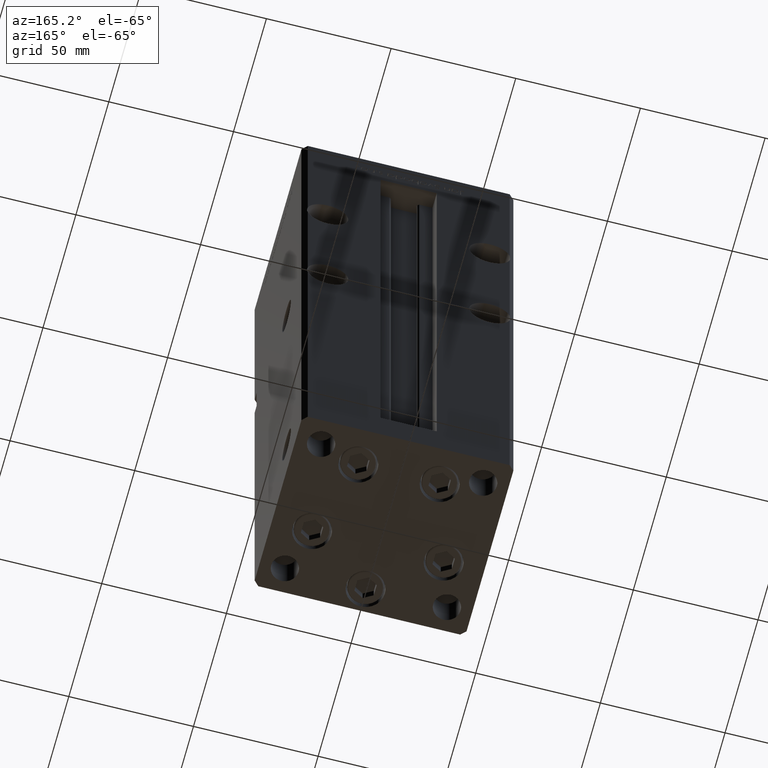
[diagram: clean part render]
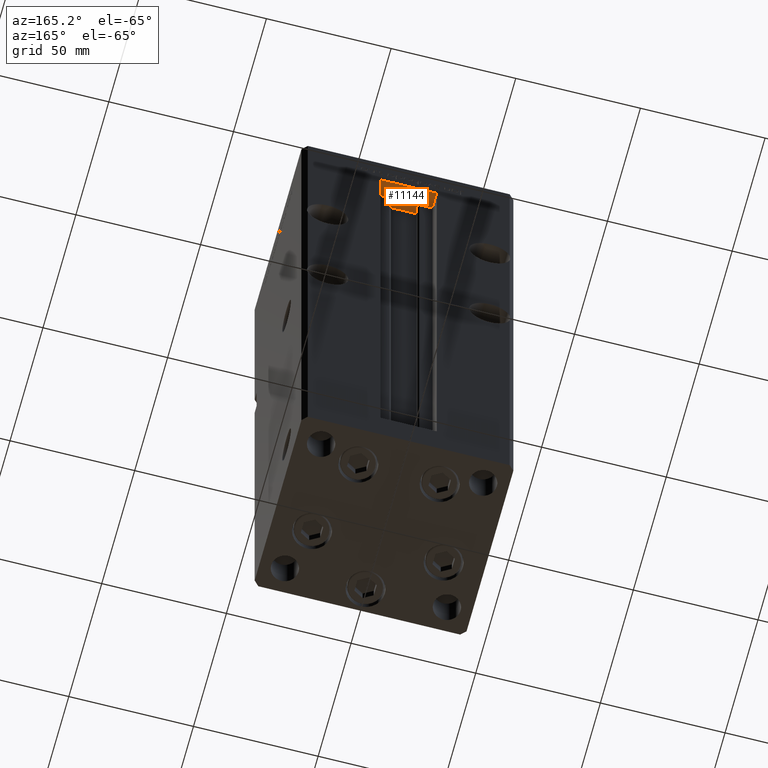
[diagram: same view with one face highlighted and labeled with its STEP entity id]
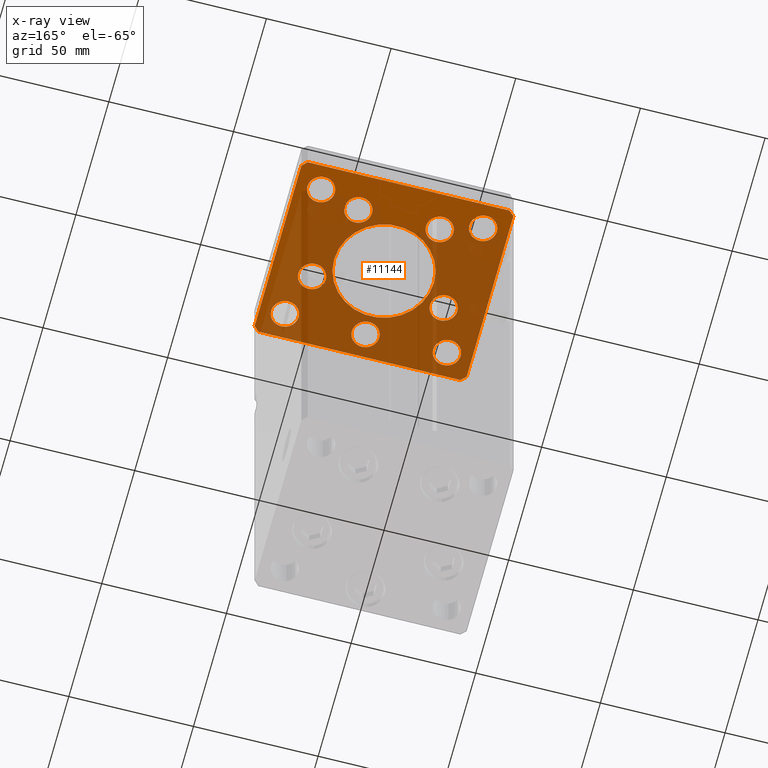
[diagram: x-ray of the same camera — body ghosted, the highlighted face saturated]
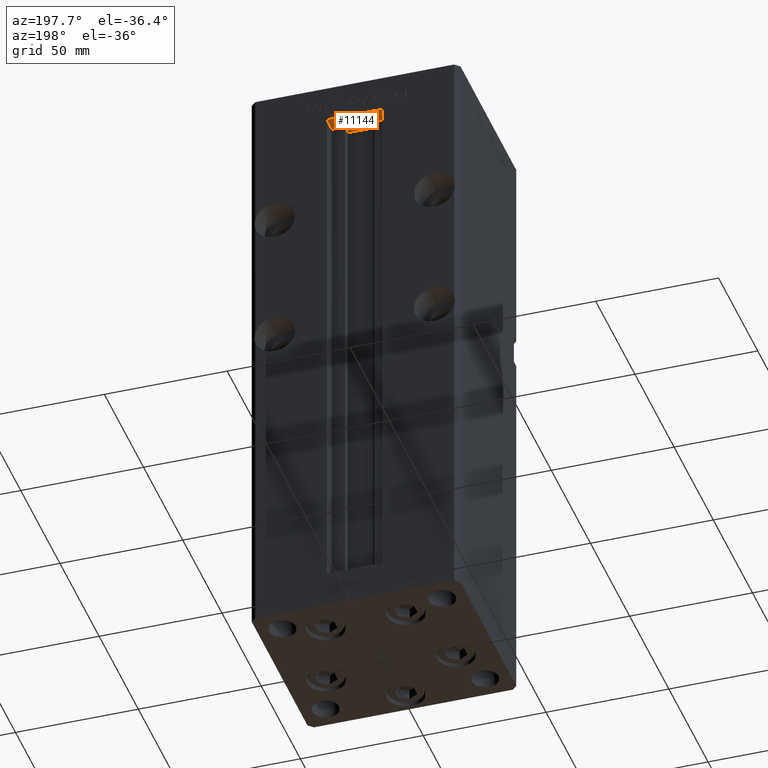
[diagram: same view with one face highlighted and labeled with its STEP entity id]
A machine part, auxiliary view. The second image highlights one B-rep face of the part: STEP entity #11144.
The next image is the same camera in x-ray: the body ghosted, the highlighted face saturated — about 74% of this face is hidden behind the body in this view.
A second angle (auxiliary view) of the same face is appended — the face is thin or edge-on in the first view.
In plain terms, the highlighted planar face has unit normal (0, 0, 1).
Its self-contained STEP definition (entity closure, byte-faithful):
#372 = VECTOR ( 'NONE', #52206, 1000.000000000000000 ) ;
#1389 = AXIS2_PLACEMENT_3D ( 'NONE', #24346, #40753, #32676 ) ;
#1548 = AXIS2_PLACEMENT_3D ( 'NONE', #11765, #7188, #15526 ) ;
#1972 = CIRCLE ( 'NONE', #41602, 5.499999999999998224 ) ;
#2320 = CARTESIAN_POINT ( 'NONE',  ( -38.00000000000000000, 27.50000000000000711, -15.00000000000000000 ) ) ;
#2345 = DIRECTION ( 'NONE',  ( 0.000000000000000000, 0.000000000000000000, 1.000000000000000000 ) ) ;
#2359 = DIRECTION ( 'NONE',  ( 1.000000000000000000, 0.000000000000000000, 0.000000000000000000 ) ) ;
#3369 = VERTEX_POINT ( 'NONE', #50619 ) ;
#3432 = VERTEX_POINT ( 'NONE', #21721 ) ;
#3564 = VERTEX_POINT ( 'NONE', #40244 ) ;
#4102 = ORIENTED_EDGE ( 'NONE', *, *, #17423, .F. ) ;
#4121 = ORIENTED_EDGE ( 'NONE', *, *, #37389, .F. ) ;
#4712 = DIRECTION ( 'NONE',  ( -0.000000000000000000, -0.000000000000000000, -1.000000000000000000 ) ) ;
#4771 = CIRCLE ( 'NONE', #6509, 5.499999999999998224 ) ;
#4852 = DIRECTION ( 'NONE',  ( 0.000000000000000000, -0.000000000000000000, -1.000000000000000000 ) ) ;
#5223 = DIRECTION ( 'NONE',  ( -0.7071067811865536790, -0.7071067811865414665, 0.000000000000000000 ) ) ;
#5290 = EDGE_CURVE ( 'NONE', #52508, #16271, #36530, .T. ) ;
#5493 = CARTESIAN_POINT ( 'NONE',  ( 42.50000000000000711, -35.49999999999992895, -15.00000000000000000 ) ) ;
#6203 = ORIENTED_EDGE ( 'NONE', *, *, #31400, .F. ) ;
#6244 = FACE_BOUND ( 'NONE', #53185, .T. ) ;
#6498 = AXIS2_PLACEMENT_3D ( 'NONE', #18413, #7094, #10076 ) ;
#6509 = AXIS2_PLACEMENT_3D ( 'NONE', #34363, #26821, #30856 ) ;
#6633 = CARTESIAN_POINT ( 'NONE',  ( 20.89865316429778019, -9.333333333333330373, -15.00000000000000000 ) ) ;
#6779 = CARTESIAN_POINT ( 'NONE',  ( -40.50000000000000711, -37.50000000000003553, -15.00000000000000000 ) ) ;
#6781 = FACE_OUTER_BOUND ( 'NONE', #52444, .T. ) ;
#6792 = DIRECTION ( 'NONE',  ( -0.7071067811865524577, 0.7071067811865426878, 0.000000000000000000 ) ) ;
#7039 = DIRECTION ( 'NONE',  ( 1.000000000000000000, 0.000000000000000000, 0.000000000000000000 ) ) ;
#7094 = DIRECTION ( 'NONE',  ( 0.000000000000000000, -0.000000000000000000, -1.000000000000000000 ) ) ;
#7188 = DIRECTION ( 'NONE',  ( 0.000000000000000000, -0.000000000000000000, -1.000000000000000000 ) ) ;
#7262 = EDGE_CURVE ( 'NONE', #15778, #21601, #43448, .T. ) ;
#7341 = VERTEX_POINT ( 'NONE', #46023 ) ;
#7431 = CARTESIAN_POINT ( 'NONE',  ( -32.50000000000000000, 27.50000000000000711, -15.00000000000000000 ) ) ;
#7930 = ORIENTED_EDGE ( 'NONE', *, *, #12037, .F. ) ;
#8038 = EDGE_CURVE ( 'NONE', #20783, #20201, #51411, .T. ) ;
#8100 = DIRECTION ( 'NONE',  ( 0.7071067811865474617, 0.7071067811865474617, 0.000000000000000000 ) ) ;
#8293 = CARTESIAN_POINT ( 'NONE',  ( -27.00000000000000355, 27.50000000000000711, -15.00000000000000000 ) ) ;
#8357 = AXIS2_PLACEMENT_3D ( 'NONE', #49977, #30048, #17147 ) ;
#8432 = CIRCLE ( 'NONE', #28175, 20.00000000000000000 ) ;
#8792 = CARTESIAN_POINT ( 'NONE',  ( 0.000000000000000000, 0.000000000000000000, -15.00000000000000000 ) ) ;
#8966 = DIRECTION ( 'NONE',  ( 1.000000000000000000, 0.000000000000000000, 0.000000000000000000 ) ) ;
#10000 = CARTESIAN_POINT ( 'NONE',  ( 5.500000000000000000, -28.00000000000000000, -15.00000000000000000 ) ) ;
#10076 = DIRECTION ( 'NONE',  ( 1.000000000000000000, 0.000000000000000000, 0.000000000000000000 ) ) ;
#10542 = DIRECTION ( 'NONE',  ( -1.000000000000000000, 0.000000000000000000, 0.000000000000000000 ) ) ;
#10742 = EDGE_LOOP ( 'NONE', ( #18051, #46572 ) ) ;
#10792 = AXIS2_PLACEMENT_3D ( 'NONE', #7431, #23436, #53026 ) ;
#10860 = CARTESIAN_POINT ( 'NONE',  ( -5.500000000000000000, -28.00000000000000000, -15.00000000000000000 ) ) ;
#11094 = DIRECTION ( 'NONE',  ( -1.000000000000000000, -4.283267841918041508E-16, 0.000000000000000000 ) ) ;
#11144 = ADVANCED_FACE ( 'NONE', ( #51453, #26948, #27221, #6244, #18886, #14588, #43899, #30726, #6781, #43103, #51975 ), #27742, .F. ) ;
#11219 = CARTESIAN_POINT ( 'NONE',  ( 0.000000000000000000, 0.000000000000000000, -15.00000000000000000 ) ) ;
#11606 = ORIENTED_EDGE ( 'NONE', *, *, #11791, .F. ) ;
#11649 = CIRCLE ( 'NONE', #10792, 5.499999999999998224 ) ;
#11765 = CARTESIAN_POINT ( 'NONE',  ( 26.39865316429777664, -9.333333333333330373, -15.00000000000000000 ) ) ;
#11791 = EDGE_CURVE ( 'NONE', #47435, #53027, #46009, .T. ) ;
#12037 = EDGE_CURVE ( 'NONE', #20114, #42062, #11649, .T. ) ;
#12299 = AXIS2_PLACEMENT_3D ( 'NONE', #14989, #4852, #2359 ) ;
#12383 = DIRECTION ( 'NONE',  ( 0.7071067811865487940, -0.7071067811865463515, 0.000000000000000000 ) ) ;
#12518 = AXIS2_PLACEMENT_3D ( 'NONE', #16436, #28027, #33115 ) ;
#12655 = CARTESIAN_POINT ( 'NONE',  ( -42.50000000000000000, -35.50000000000004263, -15.00000000000000000 ) ) ;
#12683 = ORIENTED_EDGE ( 'NONE', *, *, #42888, .F. ) ;
#12889 = DIRECTION ( 'NONE',  ( 0.000000000000000000, 0.000000000000000000, 1.000000000000000000 ) ) ;
#13141 = VECTOR ( 'NONE', #5223, 1000.000000000000000 ) ;
#13209 = ORIENTED_EDGE ( 'NONE', *, *, #43740, .F. ) ;
#13289 = ORIENTED_EDGE ( 'NONE', *, *, #40104, .F. ) ;
#13296 = VERTEX_POINT ( 'NONE', #41117 ) ;
#13407 = VECTOR ( 'NONE', #6792, 1000.000000000000000 ) ;
#13435 = EDGE_CURVE ( 'NONE', #53218, #34864, #14256, .T. ) ;
#13626 = DIRECTION ( 'NONE',  ( 1.000000000000000000, 0.000000000000000000, 0.000000000000000000 ) ) ;
#13845 = CIRCLE ( 'NONE', #43042, 5.500000000000000000 ) ;
#14033 = AXIS2_PLACEMENT_3D ( 'NONE', #29148, #16774, #8966 ) ;
#14082 = DIRECTION ( 'NONE',  ( 0.000000000000000000, -0.000000000000000000, -1.000000000000000000 ) ) ;
#14256 = CIRCLE ( 'NONE', #44338, 5.499999999999998224 ) ;
#14550 = DIRECTION ( 'NONE',  ( -0.000000000000000000, -0.000000000000000000, -1.000000000000000000 ) ) ;
#14588 = FACE_BOUND ( 'NONE', #10742, .T. ) ;
#14730 = ORIENTED_EDGE ( 'NONE', *, *, #40576, .T. ) ;
#14841 = DIRECTION ( 'NONE',  ( -0.000000000000000000, 0.000000000000000000, 1.000000000000000000 ) ) ;
#14989 = CARTESIAN_POINT ( 'NONE',  ( 26.39865316429777664, -9.333333333333330373, -15.00000000000000000 ) ) ;
#15526 = DIRECTION ( 'NONE',  ( 1.000000000000000000, 0.000000000000000000, 0.000000000000000000 ) ) ;
#15671 = VERTEX_POINT ( 'NONE', #39396 ) ;
#15778 = VERTEX_POINT ( 'NONE', #32899 ) ;
#15794 = CARTESIAN_POINT ( 'NONE',  ( 10.82291334290544604, 22.74999999999999289, -15.00000000000000000 ) ) ;
#16164 = CARTESIAN_POINT ( 'NONE',  ( 42.50000000000001421, 35.50000000000002132, -15.00000000000000000 ) ) ;
#16271 = VERTEX_POINT ( 'NONE', #46022 ) ;
#16382 = VERTEX_POINT ( 'NONE', #10860 ) ;
#16436 = CARTESIAN_POINT ( 'NONE',  ( -16.32291334290544071, 22.74999999999999289, -15.00000000000000000 ) ) ;
#16774 = DIRECTION ( 'NONE',  ( 0.000000000000000000, -0.000000000000000000, -1.000000000000000000 ) ) ;
#16949 = CIRCLE ( 'NONE', #47027, 5.499999999999998224 ) ;
#17147 = DIRECTION ( 'NONE',  ( 1.000000000000000000, 0.000000000000000000, 0.000000000000000000 ) ) ;
#17313 = ORIENTED_EDGE ( 'NONE', *, *, #13435, .T. ) ;
#17423 = EDGE_CURVE ( 'NONE', #13296, #17625, #51667, .T. ) ;
#17625 = VERTEX_POINT ( 'NONE', #28967 ) ;
#17664 = DIRECTION ( 'NONE',  ( 0.000000000000000000, -0.000000000000000000, -1.000000000000000000 ) ) ;
#17762 = CIRCLE ( 'NONE', #1389, 5.499999999999998224 ) ;
#18039 = VECTOR ( 'NONE', #47903, 1000.000000000000000 ) ;
#18051 = ORIENTED_EDGE ( 'NONE', *, *, #7262, .F. ) ;
#18096 = DIRECTION ( 'NONE',  ( -0.000000000000000000, -0.000000000000000000, -1.000000000000000000 ) ) ;
#18413 = CARTESIAN_POINT ( 'NONE',  ( 16.32291334290544071, 22.74999999999999289, -15.00000000000000000 ) ) ;
#18886 = FACE_BOUND ( 'NONE', #30889, .T. ) ;
#19035 = CIRCLE ( 'NONE', #50844, 5.499999999999998224 ) ;
#19587 = VERTEX_POINT ( 'NONE', #6633 ) ;
#19629 = DIRECTION ( 'NONE',  ( 1.000000000000000000, 0.000000000000000000, 0.000000000000000000 ) ) ;
#20114 = VERTEX_POINT ( 'NONE', #8293 ) ;
#20155 = ORIENTED_EDGE ( 'NONE', *, *, #53156, .F. ) ;
#20201 = VERTEX_POINT ( 'NONE', #39182 ) ;
#20350 = CARTESIAN_POINT ( 'NONE',  ( 32.50000000000000000, -27.50000000000000355, -15.00000000000000000 ) ) ;
#20419 = CARTESIAN_POINT ( 'NONE',  ( 32.50000000000000000, 27.49999999999999645, -15.00000000000000000 ) ) ;
#20538 = DIRECTION ( 'NONE',  ( 1.000000000000000000, 0.000000000000000000, 0.000000000000000000 ) ) ;
#20626 = EDGE_LOOP ( 'NONE', ( #12683, #52006 ) ) ;
#20664 = EDGE_CURVE ( 'NONE', #16382, #35600, #13845, .T. ) ;
#20752 = ORIENTED_EDGE ( 'NONE', *, *, #50272, .F. ) ;
#20783 = VERTEX_POINT ( 'NONE', #6779 ) ;
#20942 = CIRCLE ( 'NONE', #27813, 5.499999999999998224 ) ;
#21601 = VERTEX_POINT ( 'NONE', #42579 ) ;
#21644 = EDGE_CURVE ( 'NONE', #42062, #20114, #19035, .T. ) ;
#21713 = CARTESIAN_POINT ( 'NONE',  ( 40.50000000000000711, 37.50000000000000711, -15.00000000000000000 ) ) ;
#21721 = CARTESIAN_POINT ( 'NONE',  ( -20.00000000000000000, 2.449293598294706513E-15, -15.00000000000000000 ) ) ;
#21764 = EDGE_LOOP ( 'NONE', ( #13289, #13209 ) ) ;
#21905 = DIRECTION ( 'NONE',  ( 9.773090005503145261E-17, 1.000000000000000000, 0.000000000000000000 ) ) ;
#22017 = AXIS2_PLACEMENT_3D ( 'NONE', #8792, #17664, #13626 ) ;
#22246 = CARTESIAN_POINT ( 'NONE',  ( 27.00000000000000355, 27.49999999999999645, -15.00000000000000000 ) ) ;
#22932 = LINE ( 'NONE', #52264, #45137 ) ;
#23081 = VERTEX_POINT ( 'NONE', #21713 ) ;
#23100 = EDGE_LOOP ( 'NONE', ( #7930, #25644 ) ) ;
#23436 = DIRECTION ( 'NONE',  ( -0.000000000000000000, -0.000000000000000000, -1.000000000000000000 ) ) ;
#24346 = CARTESIAN_POINT ( 'NONE',  ( -26.39865316429777664, -9.333333333333330373, -15.00000000000000000 ) ) ;
#24474 = EDGE_LOOP ( 'NONE', ( #37506, #17313 ) ) ;
#24546 = AXIS2_PLACEMENT_3D ( 'NONE', #35542, #14841, #7039 ) ;
#25644 = ORIENTED_EDGE ( 'NONE', *, *, #21644, .F. ) ;
#25942 = LINE ( 'NONE', #5493, #27051 ) ;
#26134 = EDGE_CURVE ( 'NONE', #48736, #13296, #28925, .T. ) ;
#26205 = ORIENTED_EDGE ( 'NONE', *, *, #30236, .T. ) ;
#26294 = ORIENTED_EDGE ( 'NONE', *, *, #5290, .F. ) ;
#26385 = CARTESIAN_POINT ( 'NONE',  ( -42.50000000000000711, 35.50000000000000000, -15.00000000000000000 ) ) ;
#26592 = VERTEX_POINT ( 'NONE', #16164 ) ;
#26821 = DIRECTION ( 'NONE',  ( 0.000000000000000000, -0.000000000000000000, -1.000000000000000000 ) ) ;
#26822 = DIRECTION ( 'NONE',  ( 1.000000000000000000, 0.000000000000000000, 0.000000000000000000 ) ) ;
#26948 = FACE_BOUND ( 'NONE', #20626, .T. ) ;
#27051 = VECTOR ( 'NONE', #21905, 1000.000000000000000 ) ;
#27130 = VECTOR ( 'NONE', #12383, 1000.000000000000000 ) ;
#27187 = CARTESIAN_POINT ( 'NONE',  ( 32.50000000000000000, -27.50000000000000355, -15.00000000000000000 ) ) ;
#27221 = FACE_BOUND ( 'NONE', #41688, .T. ) ;
#27306 = CARTESIAN_POINT ( 'NONE',  ( 31.89865316429777664, -9.333333333333330373, -15.00000000000000000 ) ) ;
#27448 = CARTESIAN_POINT ( 'NONE',  ( -40.50000000000000000, 37.49999999999997158, -15.00000000000000000 ) ) ;
#27742 = PLANE ( 'NONE',  #24546 ) ;
#27813 = AXIS2_PLACEMENT_3D ( 'NONE', #28032, #51990, #36632 ) ;
#27891 = DIRECTION ( 'NONE',  ( 0.000000000000000000, -0.000000000000000000, -1.000000000000000000 ) ) ;
#28027 = DIRECTION ( 'NONE',  ( 0.000000000000000000, -0.000000000000000000, -1.000000000000000000 ) ) ;
#28032 = CARTESIAN_POINT ( 'NONE',  ( -32.50000000000000000, -27.50000000000000355, -15.00000000000000000 ) ) ;
#28060 = CIRCLE ( 'NONE', #22017, 20.00000000000000000 ) ;
#28175 = AXIS2_PLACEMENT_3D ( 'NONE', #11219, #27891, #44044 ) ;
#28925 = LINE ( 'NONE', #37514, #13141 ) ;
#28967 = CARTESIAN_POINT ( 'NONE',  ( -42.50000000000000000, -35.50000000000004263, -15.00000000000000000 ) ) ;
#28969 = CIRCLE ( 'NONE', #8357, 5.499999999999998224 ) ;
#29108 = CARTESIAN_POINT ( 'NONE',  ( -27.00000000000000355, -27.50000000000000355, -15.00000000000000000 ) ) ;
#29148 = CARTESIAN_POINT ( 'NONE',  ( -16.32291334290544071, 22.74999999999999289, -15.00000000000000000 ) ) ;
#30022 = EDGE_CURVE ( 'NONE', #20201, #15671, #32041, .T. ) ;
#30048 = DIRECTION ( 'NONE',  ( 0.000000000000000000, -0.000000000000000000, -1.000000000000000000 ) ) ;
#30236 = EDGE_CURVE ( 'NONE', #42930, #7341, #1972, .T. ) ;
#30726 = FACE_BOUND ( 'NONE', #24474, .T. ) ;
#30856 = DIRECTION ( 'NONE',  ( 1.000000000000000000, 0.000000000000000000, 0.000000000000000000 ) ) ;
#30889 = EDGE_LOOP ( 'NONE', ( #11606, #48153 ) ) ;
#30995 = ORIENTED_EDGE ( 'NONE', *, *, #36234, .F. ) ;
#31048 = CARTESIAN_POINT ( 'NONE',  ( 40.50000000000001421, -37.49999999999992184, -15.00000000000000000 ) ) ;
#31209 = DIRECTION ( 'NONE',  ( -1.000000000000000000, 0.000000000000000000, 0.000000000000000000 ) ) ;
#31400 = EDGE_CURVE ( 'NONE', #19587, #47371, #45827, .T. ) ;
#31519 = ORIENTED_EDGE ( 'NONE', *, *, #20664, .F. ) ;
#31621 = CIRCLE ( 'NONE', #1548, 5.499999999999998224 ) ;
#31774 = EDGE_CURVE ( 'NONE', #21601, #15778, #39793, .T. ) ;
#32041 = LINE ( 'NONE', #31048, #48376 ) ;
#32053 = CARTESIAN_POINT ( 'NONE',  ( -38.00000000000000000, -27.50000000000000355, -15.00000000000000000 ) ) ;
#32513 = DIRECTION ( 'NONE',  ( 0.000000000000000000, 0.000000000000000000, 1.000000000000000000 ) ) ;
#32612 = ORIENTED_EDGE ( 'NONE', *, *, #26134, .F. ) ;
#32676 = DIRECTION ( 'NONE',  ( 1.000000000000000000, 0.000000000000000000, 0.000000000000000000 ) ) ;
#32844 = ORIENTED_EDGE ( 'NONE', *, *, #48400, .F. ) ;
#32899 = CARTESIAN_POINT ( 'NONE',  ( -10.82291334290544249, 22.74999999999999289, -15.00000000000000000 ) ) ;
#32992 = EDGE_CURVE ( 'NONE', #34864, #53218, #20942, .T. ) ;
#33115 = DIRECTION ( 'NONE',  ( 1.000000000000000000, 0.000000000000000000, 0.000000000000000000 ) ) ;
#33167 = DIRECTION ( 'NONE',  ( 0.000000000000000000, -0.000000000000000000, -1.000000000000000000 ) ) ;
#34363 = CARTESIAN_POINT ( 'NONE',  ( 16.32291334290544071, 22.74999999999999289, -15.00000000000000000 ) ) ;
#34727 = ORIENTED_EDGE ( 'NONE', *, *, #43381, .F. ) ;
#34864 = VERTEX_POINT ( 'NONE', #29108 ) ;
#34926 = CIRCLE ( 'NONE', #48687, 5.499999999999998224 ) ;
#35295 = LINE ( 'NONE', #48216, #13407 ) ;
#35542 = CARTESIAN_POINT ( 'NONE',  ( 0.000000000000000000, 0.000000000000000000, -15.00000000000000000 ) ) ;
#35600 = VERTEX_POINT ( 'NONE', #10000 ) ;
#36234 = EDGE_CURVE ( 'NONE', #15671, #26592, #25942, .T. ) ;
#36530 = CIRCLE ( 'NONE', #43408, 5.499999999999998224 ) ;
#36632 = DIRECTION ( 'NONE',  ( 1.000000000000000000, 0.000000000000000000, 0.000000000000000000 ) ) ;
#36731 = AXIS2_PLACEMENT_3D ( 'NONE', #38814, #14082, #42611 ) ;
#37389 = EDGE_CURVE ( 'NONE', #17625, #20783, #44949, .T. ) ;
#37506 = ORIENTED_EDGE ( 'NONE', *, *, #32992, .T. ) ;
#37514 = CARTESIAN_POINT ( 'NONE',  ( -40.50000000000000000, 37.49999999999997158, -15.00000000000000000 ) ) ;
#37958 = EDGE_CURVE ( 'NONE', #53027, #47435, #4771, .T. ) ;
#38142 = EDGE_LOOP ( 'NONE', ( #34727, #26294 ) ) ;
#38745 = VERTEX_POINT ( 'NONE', #51920 ) ;
#38814 = CARTESIAN_POINT ( 'NONE',  ( 0.000000000000000000, -28.00000000000000000, -15.00000000000000000 ) ) ;
#39008 = CARTESIAN_POINT ( 'NONE',  ( -40.50000000000000711, -37.50000000000003553, -15.00000000000000000 ) ) ;
#39182 = CARTESIAN_POINT ( 'NONE',  ( 40.50000000000001421, -37.49999999999992184, -15.00000000000000000 ) ) ;
#39396 = CARTESIAN_POINT ( 'NONE',  ( 42.50000000000000711, -35.49999999999992895, -15.00000000000000000 ) ) ;
#39793 = CIRCLE ( 'NONE', #14033, 5.500000000000000000 ) ;
#40104 = EDGE_CURVE ( 'NONE', #38745, #3432, #28060, .T. ) ;
#40244 = CARTESIAN_POINT ( 'NONE',  ( -20.89865316429778019, -9.333333333333330373, -15.00000000000000000 ) ) ;
#40576 = EDGE_CURVE ( 'NONE', #7341, #42930, #34926, .T. ) ;
#40671 = ORIENTED_EDGE ( 'NONE', *, *, #8038, .F. ) ;
#40753 = DIRECTION ( 'NONE',  ( 0.000000000000000000, -0.000000000000000000, -1.000000000000000000 ) ) ;
#40961 = EDGE_CURVE ( 'NONE', #3369, #3564, #17762, .T. ) ;
#41117 = CARTESIAN_POINT ( 'NONE',  ( -42.50000000000000711, 35.50000000000000000, -15.00000000000000000 ) ) ;
#41602 = AXIS2_PLACEMENT_3D ( 'NONE', #20419, #32513, #19629 ) ;
#41688 = EDGE_LOOP ( 'NONE', ( #32844, #31519 ) ) ;
#42062 = VERTEX_POINT ( 'NONE', #2320 ) ;
#42441 = CARTESIAN_POINT ( 'NONE',  ( -32.50000000000000000, -27.50000000000000355, -15.00000000000000000 ) ) ;
#42579 = CARTESIAN_POINT ( 'NONE',  ( -21.82291334290544071, 22.74999999999999289, -15.00000000000000000 ) ) ;
#42611 = DIRECTION ( 'NONE',  ( 1.000000000000000000, 0.000000000000000000, 0.000000000000000000 ) ) ;
#42888 = EDGE_CURVE ( 'NONE', #3564, #3369, #28969, .T. ) ;
#42930 = VERTEX_POINT ( 'NONE', #22246 ) ;
#43042 = AXIS2_PLACEMENT_3D ( 'NONE', #50112, #33167, #20538 ) ;
#43073 = ORIENTED_EDGE ( 'NONE', *, *, #43708, .F. ) ;
#43103 = FACE_BOUND ( 'NONE', #23100, .T. ) ;
#43381 = EDGE_CURVE ( 'NONE', #16271, #52508, #16949, .T. ) ;
#43408 = AXIS2_PLACEMENT_3D ( 'NONE', #20350, #4712, #49134 ) ;
#43448 = CIRCLE ( 'NONE', #12518, 5.500000000000000000 ) ;
#43708 = EDGE_CURVE ( 'NONE', #47371, #19587, #31621, .T. ) ;
#43740 = EDGE_CURVE ( 'NONE', #3432, #38745, #8432, .T. ) ;
#43899 = FACE_BOUND ( 'NONE', #52725, .T. ) ;
#44044 = DIRECTION ( 'NONE',  ( 1.000000000000000000, 0.000000000000000000, 0.000000000000000000 ) ) ;
#44338 = AXIS2_PLACEMENT_3D ( 'NONE', #42441, #2345, #26822 ) ;
#44949 = LINE ( 'NONE', #12655, #27130 ) ;
#45037 = CARTESIAN_POINT ( 'NONE',  ( 21.82291334290544071, 22.74999999999999289, -15.00000000000000000 ) ) ;
#45137 = VECTOR ( 'NONE', #11094, 1000.000000000000000 ) ;
#45827 = CIRCLE ( 'NONE', #12299, 5.499999999999998224 ) ;
#46009 = CIRCLE ( 'NONE', #6498, 5.499999999999998224 ) ;
#46022 = CARTESIAN_POINT ( 'NONE',  ( 38.00000000000000000, -27.50000000000000355, -15.00000000000000000 ) ) ;
#46023 = CARTESIAN_POINT ( 'NONE',  ( 38.00000000000000000, 27.49999999999999645, -15.00000000000000000 ) ) ;
#46264 = CARTESIAN_POINT ( 'NONE',  ( 32.50000000000000000, 27.49999999999999645, -15.00000000000000000 ) ) ;
#46572 = ORIENTED_EDGE ( 'NONE', *, *, #31774, .F. ) ;
#47027 = AXIS2_PLACEMENT_3D ( 'NONE', #27187, #14550, #31209 ) ;
#47371 = VERTEX_POINT ( 'NONE', #27306 ) ;
#47405 = CARTESIAN_POINT ( 'NONE',  ( 27.00000000000000355, -27.50000000000000355, -15.00000000000000000 ) ) ;
#47435 = VERTEX_POINT ( 'NONE', #45037 ) ;
#47678 = ORIENTED_EDGE ( 'NONE', *, *, #30022, .F. ) ;
#47903 = DIRECTION ( 'NONE',  ( 9.773090005503134168E-17, -1.000000000000000000, 0.000000000000000000 ) ) ;
#48153 = ORIENTED_EDGE ( 'NONE', *, *, #37958, .F. ) ;
#48216 = CARTESIAN_POINT ( 'NONE',  ( 42.50000000000001421, 35.50000000000002132, -15.00000000000000000 ) ) ;
#48376 = VECTOR ( 'NONE', #8100, 1000.000000000000114 ) ;
#48400 = EDGE_CURVE ( 'NONE', #35600, #16382, #52219, .T. ) ;
#48687 = AXIS2_PLACEMENT_3D ( 'NONE', #46264, #12889, #50304 ) ;
#48736 = VERTEX_POINT ( 'NONE', #27448 ) ;
#49134 = DIRECTION ( 'NONE',  ( -1.000000000000000000, 0.000000000000000000, 0.000000000000000000 ) ) ;
#49977 = CARTESIAN_POINT ( 'NONE',  ( -26.39865316429777664, -9.333333333333330373, -15.00000000000000000 ) ) ;
#50112 = CARTESIAN_POINT ( 'NONE',  ( 0.000000000000000000, -28.00000000000000000, -15.00000000000000000 ) ) ;
#50272 = EDGE_CURVE ( 'NONE', #23081, #48736, #22932, .T. ) ;
#50304 = DIRECTION ( 'NONE',  ( 1.000000000000000000, 0.000000000000000000, 0.000000000000000000 ) ) ;
#50395 = CARTESIAN_POINT ( 'NONE',  ( -32.50000000000000000, 27.50000000000000711, -15.00000000000000000 ) ) ;
#50619 = CARTESIAN_POINT ( 'NONE',  ( -31.89865316429777664, -9.333333333333330373, -15.00000000000000000 ) ) ;
#50844 = AXIS2_PLACEMENT_3D ( 'NONE', #50395, #18096, #10542 ) ;
#51411 = LINE ( 'NONE', #39008, #372 ) ;
#51453 = FACE_BOUND ( 'NONE', #21764, .T. ) ;
#51667 = LINE ( 'NONE', #26385, #18039 ) ;
#51920 = CARTESIAN_POINT ( 'NONE',  ( 20.00000000000000000, 0.000000000000000000, -15.00000000000000000 ) ) ;
#51975 = FACE_BOUND ( 'NONE', #38142, .T. ) ;
#51990 = DIRECTION ( 'NONE',  ( 0.000000000000000000, 0.000000000000000000, 1.000000000000000000 ) ) ;
#52006 = ORIENTED_EDGE ( 'NONE', *, *, #40961, .F. ) ;
#52206 = DIRECTION ( 'NONE',  ( 1.000000000000000000, 1.370645709413773283E-15, 0.000000000000000000 ) ) ;
#52219 = CIRCLE ( 'NONE', #36731, 5.500000000000000000 ) ;
#52264 = CARTESIAN_POINT ( 'NONE',  ( 40.50000000000000711, 37.50000000000000711, -15.00000000000000000 ) ) ;
#52444 = EDGE_LOOP ( 'NONE', ( #4121, #4102, #32612, #20752, #20155, #30995, #47678, #40671 ) ) ;
#52508 = VERTEX_POINT ( 'NONE', #47405 ) ;
#52725 = EDGE_LOOP ( 'NONE', ( #14730, #26205 ) ) ;
#53026 = DIRECTION ( 'NONE',  ( -1.000000000000000000, 0.000000000000000000, 0.000000000000000000 ) ) ;
#53027 = VERTEX_POINT ( 'NONE', #15794 ) ;
#53156 = EDGE_CURVE ( 'NONE', #26592, #23081, #35295, .T. ) ;
#53185 = EDGE_LOOP ( 'NONE', ( #43073, #6203 ) ) ;
#53218 = VERTEX_POINT ( 'NONE', #32053 ) ;